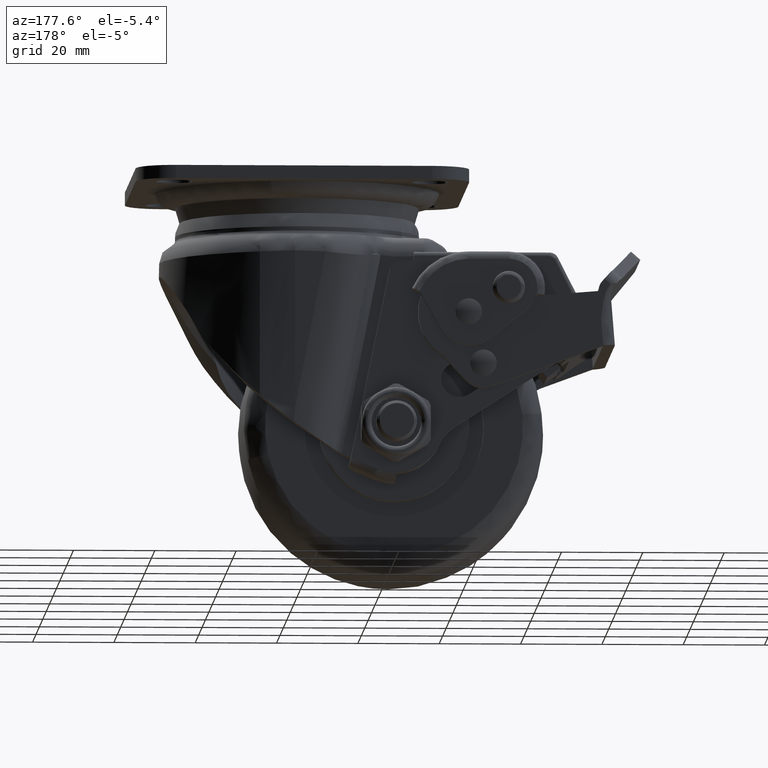
[diagram: clean part render]
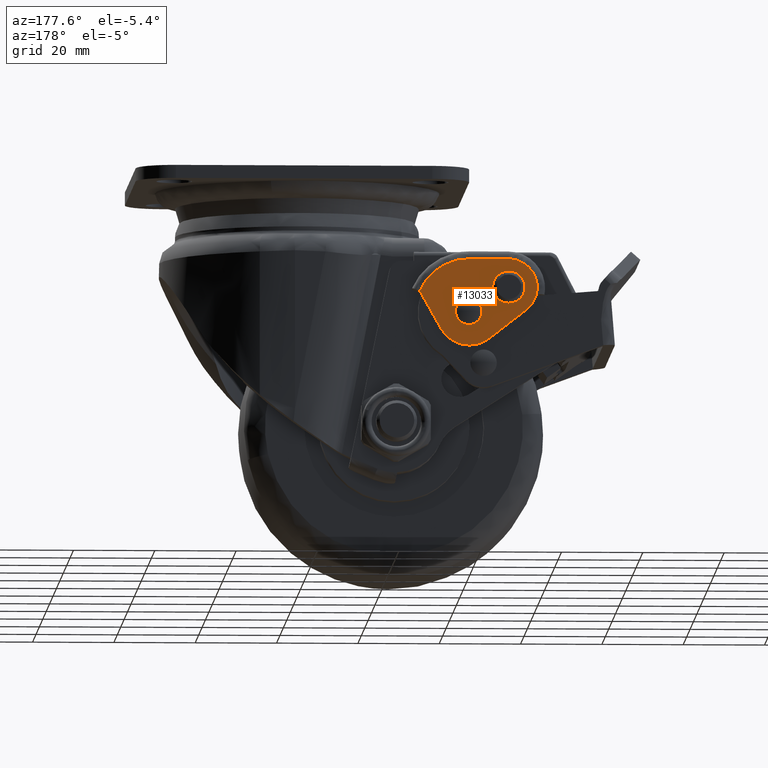
[diagram: same view with one face highlighted and labeled with its STEP entity id]
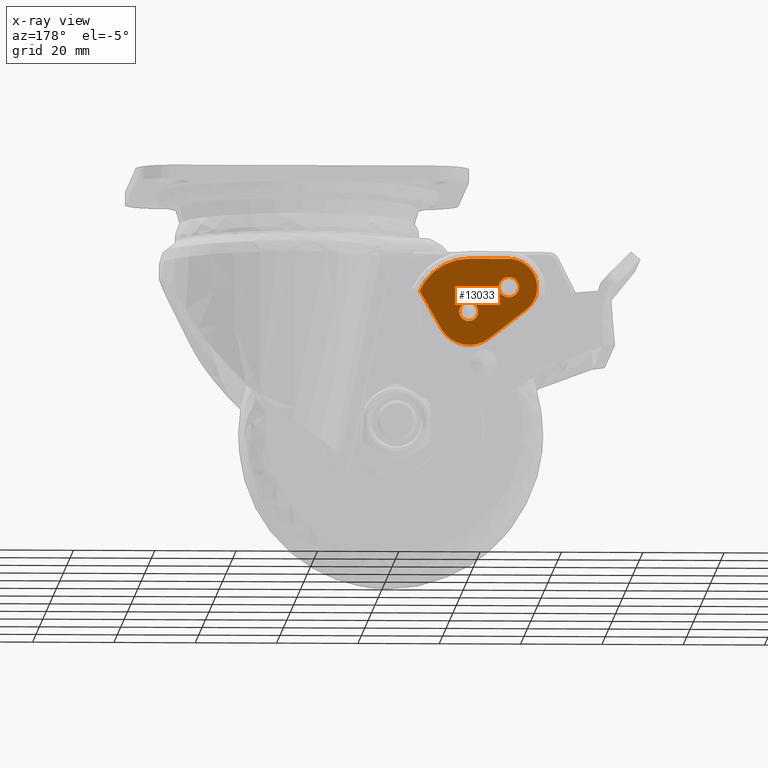
[diagram: x-ray of the same camera — body ghosted, the highlighted face saturated]
A machine part, auxiliary view. The second image highlights one B-rep face of the part: STEP entity #13033.
The next image is the same camera in x-ray: the body ghosted, the highlighted face saturated — about 0% of this face is hidden behind the body in this view.
In plain terms, the highlighted face is a freeform B-spline surface patch.
Its self-contained STEP definition (entity closure, byte-faithful):
#1064=CARTESIAN_POINT('',(-42.574883191452713,34.100006382280199,-33.766673341095078));
#1065=VERTEX_POINT('',#1064);
#1071=CARTESIAN_POINT('',(-40.792335500078302,34.100006000000100,-32.939647000000313));
#1072=VERTEX_POINT('',#1071);
#1073=CARTESIAN_POINT('',(-42.574883191452713,34.100006382280199,-33.766673341095078));
#1074=CARTESIAN_POINT('',(-42.370466636384663,34.100006338441588,-33.524433009491602));
#1075=CARTESIAN_POINT('',(-41.827068899284527,34.100006221906149,-33.098885324676452));
#1076=CARTESIAN_POINT('',(-41.151583893008407,34.100006077043503,-32.939105473525053));
#1077=CARTESIAN_POINT('',(-40.792335500078302,34.100006000000100,-32.939647000000313));
#1078=B_SPLINE_CURVE_WITH_KNOTS('',3,(#1073,#1074,#1075,#1076,#1077),.UNSPECIFIED.,.F.,.U.,(4,1,4),(0.000000129872979,0.950797897991945,2.028309819867152),.UNSPECIFIED.);
#1079=EDGE_CURVE('',#1065,#1072,#1078,.T.);
#1081=CARTESIAN_POINT('',(-38.457801500081047,34.100006000000100,-35.274184382237692));
#1082=VERTEX_POINT('',#1081);
#1083=CARTESIAN_POINT('',(-40.792335500078302,34.100006000000100,-32.939647000000313));
#1084=CARTESIAN_POINT('',(-40.505808576500037,34.100006000000157,-32.939398136130137));
#1085=CARTESIAN_POINT('',(-40.028516314933320,34.100006000000029,-33.028701182422033));
#1086=CARTESIAN_POINT('',(-39.383563507338494,34.100006000000128,-33.373409510353291));
#1087=CARTESIAN_POINT('',(-38.940558259260200,34.100006000000107,-33.805657259792213));
#1088=CARTESIAN_POINT('',(-38.563166472949462,34.100006000000000,-34.453229549226371));
#1089=CARTESIAN_POINT('',(-38.457382664729202,34.100006000000100,-34.949400640950763));
#1090=CARTESIAN_POINT('',(-38.457801500081047,34.100006000000100,-35.274184382237692));
#1091=B_SPLINE_CURVE_WITH_KNOTS('',3,(#1083,#1084,#1085,#1086,#1087,#1088,#1089,#1090),.UNSPECIFIED.,.F.,.U.,(4,1,1,1,1,4),(0.000000385372509,0.859494370370032,1.432497426822967,2.177356695668710,2.693075669383988,3.667171359946788),.UNSPECIFIED.);
#1092=EDGE_CURVE('',#1072,#1082,#1091,.T.);
#1094=CARTESIAN_POINT('',(-40.792335500078302,34.100006000000100,-37.608714999999698));
#1095=VERTEX_POINT('',#1094);
#1096=CARTESIAN_POINT('',(-38.457801500081047,34.100006000000100,-35.274184382237692));
#1097=CARTESIAN_POINT('',(-38.457213297915487,34.100006000000221,-35.637190204337472));
#1098=CARTESIAN_POINT('',(-38.598690525809531,34.100005999999873,-36.228683258099693));
#1099=CARTESIAN_POINT('',(-39.043629341651993,34.100006000000370,-36.860010599276883));
#1100=CARTESIAN_POINT('',(-39.455363395882380,34.100005999999823,-37.206335503180313));
#1101=CARTESIAN_POINT('',(-40.009511957553258,34.100006000000313,-37.511560946481197));
#1102=CARTESIAN_POINT('',(-40.467564815376043,34.100005999999993,-37.609096286534907));
#1103=CARTESIAN_POINT('',(-40.792335500078302,34.100006000000100,-37.608714999999698));
#1104=B_SPLINE_CURVE_WITH_KNOTS('',3,(#1096,#1097,#1098,#1099,#1100,#1101,#1102,#1103),.UNSPECIFIED.,.F.,.U.,(4,1,1,1,1,4),(0.000000389997788,1.088697619170617,1.776337510879760,2.291942768800888,2.693072866498494,3.667167547281464),.UNSPECIFIED.);
#1105=EDGE_CURVE('',#1082,#1095,#1104,.T.);
#1107=CARTESIAN_POINT('',(-42.399321673234333,34.100005612870191,-36.967591090904243));
#1108=VERTEX_POINT('',#1107);
#1109=CARTESIAN_POINT('',(-40.792335500078302,34.100006000000100,-37.608714999999698));
#1110=CARTESIAN_POINT('',(-41.032346200386883,34.100005942180523,-37.608797141734463));
#1111=CARTESIAN_POINT('',(-41.623159432611097,34.100005799850919,-37.516882710909293));
#1112=CARTESIAN_POINT('',(-42.145173502720702,34.100005674095677,-37.209557630376942));
#1113=CARTESIAN_POINT('',(-42.399321673234333,34.100005612870191,-36.967591090904243));
#1114=B_SPLINE_CURVE_WITH_KNOTS('',3,(#1109,#1110,#1111,#1112,#1113),.UNSPECIFIED.,.F.,.U.,(4,1,4),(0.000000086479995,0.720067539410083,1.772461775628986),.UNSPECIFIED.);
#1115=EDGE_CURVE('',#1095,#1108,#1114,.T.);
#1195=CARTESIAN_POINT('',(-43.126869500075550,34.100006000000100,-35.274177617762298));
#1196=VERTEX_POINT('',#1195);
#1197=CARTESIAN_POINT('',(-42.399321673234333,34.100005612870191,-36.967591090904243));
#1198=CARTESIAN_POINT('',(-42.614290838626772,34.100005659416517,-36.763984799372707));
#1199=CARTESIAN_POINT('',(-42.988190786490641,34.100005779012477,-36.240837571568029));
#1200=CARTESIAN_POINT('',(-43.127323207315797,34.100005923283732,-35.609756311650457));
#1201=CARTESIAN_POINT('',(-43.126869500075550,34.100006000000100,-35.274177617762298));
#1202=B_SPLINE_CURVE_WITH_KNOTS('',3,(#1197,#1198,#1199,#1200,#1201),.UNSPECIFIED.,.F.,.U.,(4,1,4),(0.000000120702166,0.888176205666778,1.894710239028327),.UNSPECIFIED.);
#1203=EDGE_CURVE('',#1108,#1196,#1202,.T.);
#1205=CARTESIAN_POINT('',(-43.126869500075550,34.100006000000100,-35.274177617762298));
#1206=CARTESIAN_POINT('',(-43.127431277407247,34.100006086607891,-34.932643785017412));
#1207=CARTESIAN_POINT('',(-43.004731051502780,34.100006225000612,-34.386897836386282));
#1208=CARTESIAN_POINT('',(-42.707197904877653,34.100006342621661,-33.923064942953239));
#1209=CARTESIAN_POINT('',(-42.574883191452713,34.100006382280199,-33.766673341095078));
#1210=B_SPLINE_CURVE_WITH_KNOTS('',3,(#1205,#1206,#1207,#1208,#1209),.UNSPECIFIED.,.F.,.U.,(4,1,4),(0.000000074674307,1.024271963896624,1.638860474799918),.UNSPECIFIED.);
#1211=EDGE_CURVE('',#1196,#1065,#1210,.T.);
#2385=CARTESIAN_POINT('',(-48.157726846598223,34.100005999999802,-29.223644831053640));
#2386=VERTEX_POINT('',#2385);
#2387=CARTESIAN_POINT('',(-49.392148480984353,34.100006209779821,-27.067626788226189));
#2388=VERTEX_POINT('',#2387);
#2389=CARTESIAN_POINT('',(-48.157726846598223,34.100005999999802,-29.223644831053640));
#2390=CARTESIAN_POINT('',(-48.157660409038783,34.100006021081697,-29.006975572816021));
#2391=CARTESIAN_POINT('',(-48.210885199628017,34.100006060606077,-28.600761927085809));
#2392=CARTESIAN_POINT('',(-48.449653531697557,34.100006119872212,-27.991654625511980));
#2393=CARTESIAN_POINT('',(-48.838714153699406,34.100006171380073,-27.462277603595538));
#2394=CARTESIAN_POINT('',(-49.205271952507367,34.100006199111220,-27.177275515972831));
#2395=CARTESIAN_POINT('',(-49.392148480984353,34.100006209779821,-27.067626788226189));
#2396=B_SPLINE_CURVE_WITH_KNOTS('',3,(#2389,#2390,#2391,#2392,#2393,#2394,#2395),.UNSPECIFIED.,.F.,.U.,(4,1,1,1,4),(0.000000107780270,0.650025391770587,1.218806580508256,1.950075960027090,2.600101244293065),.UNSPECIFIED.);
#2397=EDGE_CURVE('',#2386,#2388,#2396,.T.);
#2399=CARTESIAN_POINT('',(-50.657771200143699,34.100005999999802,-31.723692353547680));
#2400=VERTEX_POINT('',#2399);
#2401=CARTESIAN_POINT('',(-50.657771200143699,34.100005999999802,-31.723692353547680));
#2402=CARTESIAN_POINT('',(-50.309995505196660,34.100005999999837,-31.724112523323381));
#2403=CARTESIAN_POINT('',(-49.717214170792523,34.100005999999802,-31.597870292288231));
#2404=CARTESIAN_POINT('',(-48.948516516590303,34.100005999999823,-31.111152987045649));
#2405=CARTESIAN_POINT('',(-48.467574812598038,34.100005999999752,-30.510317154175510));
#2406=CARTESIAN_POINT('',(-48.208221658191981,34.100005999999730,-29.837214006041851));
#2407=CARTESIAN_POINT('',(-48.157683435684902,34.100005999999667,-29.428177874801861));
#2408=CARTESIAN_POINT('',(-48.157726846598223,34.100005999999802,-29.223644831053640));
#2409=B_SPLINE_CURVE_WITH_KNOTS('',3,(#2401,#2402,#2403,#2404,#2405,#2406,#2407,#2408),.UNSPECIFIED.,.F.,.U.,(4,1,1,1,1,4),(0.000000412953550,1.043156085626247,1.779517573904574,2.699907514640243,3.313551735074864,3.927160819131117),.UNSPECIFIED.);
#2410=EDGE_CURVE('',#2400,#2386,#2409,.T.);
#2412=CARTESIAN_POINT('',(-52.500998347180399,34.100006239340622,-30.912654495587500));
#2413=VERTEX_POINT('',#2412);
#2414=CARTESIAN_POINT('',(-52.500998347180399,34.100006239340622,-30.912654495587500));
#2415=CARTESIAN_POINT('',(-52.282423514204218,34.100006210958902,-31.151692115033349));
#2416=CARTESIAN_POINT('',(-51.715165653222947,34.100006137301271,-31.568538998973150));
#2417=CARTESIAN_POINT('',(-51.024897268453387,34.100006047670668,-31.724295499703668));
#2418=CARTESIAN_POINT('',(-50.657771200143699,34.100005999999802,-31.723692353547680));
#2419=B_SPLINE_CURVE_WITH_KNOTS('',3,(#2414,#2415,#2416,#2417,#2418),.UNSPECIFIED.,.F.,.U.,(4,1,4),(0.000000110185697,0.971591639169405,2.072673825543643),.UNSPECIFIED.);
#2420=EDGE_CURVE('',#2413,#2400,#2419,.T.);
#2484=CARTESIAN_POINT('',(-50.657771200143699,34.100005999999802,-26.723603646452720));
#2485=VERTEX_POINT('',#2484);
#2486=CARTESIAN_POINT('',(-49.392148480984353,34.100006209779821,-27.067626788226189));
#2487=CARTESIAN_POINT('',(-49.773398740256802,34.100006146586587,-26.842921770915659));
#2488=CARTESIAN_POINT('',(-50.215292493281261,34.100006073341760,-26.723058732734899));
#2489=CARTESIAN_POINT('',(-50.657771200143699,34.100005999999802,-26.723603646452720));
#2490=B_SPLINE_CURVE_WITH_KNOTS('',3,(#2486,#2487,#2488,#2489),.UNSPECIFIED.,.F.,.U.,(4,4),(0.000000029602861,1.327132310826986),.UNSPECIFIED.);
#2491=EDGE_CURVE('',#2388,#2485,#2490,.T.);
#2536=CARTESIAN_POINT('',(-53.157815553689169,34.100005999999809,-29.223651168946741));
#2537=VERTEX_POINT('',#2536);
#2538=CARTESIAN_POINT('',(-53.157815553689169,34.100005999999809,-29.223651168946741));
#2539=CARTESIAN_POINT('',(-53.158026988199673,34.100006041065008,-29.513444309629300));
#2540=CARTESIAN_POINT('',(-53.049059077811897,34.100006128635023,-30.131417095703199));
#2541=CARTESIAN_POINT('',(-52.723171552589953,34.100006205062542,-30.670757354116549));
#2542=CARTESIAN_POINT('',(-52.500998347180399,34.100006239340622,-30.912654495587500));
#2543=B_SPLINE_CURVE_WITH_KNOTS('',3,(#2538,#2539,#2540,#2541,#2542),.UNSPECIFIED.,.F.,.U.,(4,1,4),(0.000000082596729,0.869314641626592,1.854484125524934),.UNSPECIFIED.);
#2544=EDGE_CURVE('',#2537,#2413,#2543,.T.);
#2546=CARTESIAN_POINT('',(-50.657771200143699,34.100005999999802,-26.723603646452720));
#2547=CARTESIAN_POINT('',(-51.046553552881683,34.100005999999823,-26.722941422200769));
#2548=CARTESIAN_POINT('',(-51.638938504039231,34.100005999999738,-26.864811949584119));
#2549=CARTESIAN_POINT('',(-52.393028364890320,34.100005999999837,-27.368651643028649));
#2550=CARTESIAN_POINT('',(-52.847967069776537,34.100005999999773,-27.936981570428760));
#2551=CARTESIAN_POINT('',(-53.107314398923400,34.100005999999837,-28.610081730448961));
#2552=CARTESIAN_POINT('',(-53.157861617702643,34.100005999999802,-29.019118627463111));
#2553=CARTESIAN_POINT('',(-53.157815553689169,34.100005999999809,-29.223651168946741));
#2554=B_SPLINE_CURVE_WITH_KNOTS('',3,(#2546,#2547,#2548,#2549,#2550,#2551,#2552,#2553),.UNSPECIFIED.,.F.,.U.,(4,1,1,1,1,4),(0.000000412960878,1.165878855568575,1.779517573907996,2.699907514642234,3.313551735075889,3.927160819131014),.UNSPECIFIED.);
#2555=EDGE_CURVE('',#2485,#2537,#2554,.T.);
#8038=CARTESIAN_POINT('',(-28.762713999999900,34.100005999999851,-30.197382000000101));
#8039=VERTEX_POINT('',#8038);
#8053=CARTESIAN_POINT('',(-40.948495741852703,34.100005999999802,-22.223533999873151));
#8054=VERTEX_POINT('',#8053);
#8055=CARTESIAN_POINT('',(-40.948495741852703,34.100005999999802,-22.223533999873151));
#8056=CARTESIAN_POINT('',(-40.105716755112972,34.100005999999709,-22.223443098788309));
#8057=CARTESIAN_POINT('',(-38.380047670424368,34.100006000000029,-22.388072542467480));
#8058=CARTESIAN_POINT('',(-35.635733852812471,34.100005999999567,-23.205919691215030));
#8059=CARTESIAN_POINT('',(-33.242991037275146,34.100006000000029,-24.563308811453680));
#8060=CARTESIAN_POINT('',(-31.433732651504169,34.100005999999567,-26.164454482866621));
#8061=CARTESIAN_POINT('',(-29.954147793022891,34.100006000000242,-27.915106131907539));
#8062=CARTESIAN_POINT('',(-29.164237582874389,34.100005999999922,-29.277902068010171));
#8063=CARTESIAN_POINT('',(-28.762713999999900,34.100005999999851,-30.197382000000101));
#8064=B_SPLINE_CURVE_WITH_KNOTS('',3,(#8055,#8056,#8057,#8058,#8059,#8060,#8061,#8062,#8063),.UNSPECIFIED.,.F.,.U.,(4,1,1,1,1,1,4),(0.000000097734512,2.528335791745437,5.177104572708473,8.548208411893645,10.715364702250991,12.400956000180280,15.410880435709791),.UNSPECIFIED.);
#8065=EDGE_CURVE('',#8054,#8039,#8064,.T.);
#8109=CARTESIAN_POINT('',(-50.657853017500301,34.100005999999802,-22.223648000490101));
#8110=VERTEX_POINT('',#8109);
#8130=CARTESIAN_POINT('',(-50.657853017500301,34.100005999999802,-22.223648000490101));
#8131=CARTESIAN_POINT('',(-40.948495741852703,34.100005999999802,-22.223533999873151));
#8132=QUASI_UNIFORM_CURVE('',1,(#8130,#8131),.UNSPECIFIED.,.F.,.U.);
#8133=EDGE_CURVE('',#8110,#8054,#8132,.T.);
#8184=CARTESIAN_POINT('',(-57.267918217336792,34.100005999999851,-31.527109592999050));
#8185=VERTEX_POINT('',#8184);
#8186=CARTESIAN_POINT('',(-57.267918217336792,34.100005999999851,-31.527109592999050));
#8187=CARTESIAN_POINT('',(-57.519892115436058,34.100005999999887,-30.805363050419849));
#8188=CARTESIAN_POINT('',(-57.741557362992971,34.100005999999787,-29.521456669647279));
#8189=CARTESIAN_POINT('',(-57.567167251879383,34.100005999999823,-27.852246329733930));
#8190=CARTESIAN_POINT('',(-57.168489105049403,34.100005999999723,-26.552308594219419));
#8191=CARTESIAN_POINT('',(-56.512373877617463,34.100006000000327,-25.280248338955971));
#8192=CARTESIAN_POINT('',(-55.474940870457232,34.100005999998530,-24.047523059623330));
#8193=CARTESIAN_POINT('',(-54.169868038833393,34.100006000001422,-23.105199965662489));
#8194=CARTESIAN_POINT('',(-52.568685352326852,34.100005999998572,-22.410161750747822));
#8195=CARTESIAN_POINT('',(-51.387583115451662,34.100005999999887,-22.223275268618369));
#8196=CARTESIAN_POINT('',(-50.657853017500301,34.100005999999802,-22.223648000490101));
#8197=B_SPLINE_CURVE_WITH_KNOTS('',3,(#8186,#8187,#8188,#8189,#8190,#8191,#8192,#8193,#8194,#8195,#8196),.UNSPECIFIED.,.F.,.U.,(4,1,1,1,1,1,1,1,4),(0.000000337780582,2.293268468686174,3.856916422173955,5.003603662057948,6.358735393512464,8.130774929858781,9.798627269756388,11.153772595075640,13.342814550701020),.UNSPECIFIED.);
#8198=EDGE_CURVE('',#8185,#8110,#8197,.T.);
#8237=CARTESIAN_POINT('',(-33.979615408766151,34.100005999999851,-39.450460719084212));
#8238=VERTEX_POINT('',#8237);
#8244=CARTESIAN_POINT('',(-33.979615408766151,34.100005999999851,-39.450460719084212));
#8245=CARTESIAN_POINT('',(-28.762713999999900,34.100005999999851,-30.197382000000101));
#8246=QUASI_UNIFORM_CURVE('',1,(#8244,#8245),.UNSPECIFIED.,.F.,.U.);
#8247=EDGE_CURVE('',#8238,#8039,#8246,.T.);
#8359=CARTESIAN_POINT('',(-54.960240880454698,34.100005999999851,-34.745305529270787));
#8360=VERTEX_POINT('',#8359);
#8361=CARTESIAN_POINT('',(-57.267918217336792,34.100005999999851,-31.527109592999050));
#8362=CARTESIAN_POINT('',(-57.034270319132702,34.100005999999951,-32.198625659147517));
#8363=CARTESIAN_POINT('',(-56.399316433956692,34.100005999999730,-33.394325301025958));
#8364=CARTESIAN_POINT('',(-55.455225150425200,34.100005999999922,-34.359876716324052));
#8365=CARTESIAN_POINT('',(-54.960240880454698,34.100005999999851,-34.745305529270787));
#8366=B_SPLINE_CURVE_WITH_KNOTS('',3,(#8361,#8362,#8363,#8364,#8365),.UNSPECIFIED.,.F.,.U.,(4,1,4),(0.000000025718386,2.132921124579681,4.014929699821024),.UNSPECIFIED.);
#8367=EDGE_CURVE('',#8185,#8360,#8366,.T.);
#8390=CARTESIAN_POINT('',(-45.865450749091004,34.100005999999851,-41.831954319166513));
#8391=VERTEX_POINT('',#8390);
#8392=CARTESIAN_POINT('',(-54.960240880454698,34.100005999999851,-34.745305529270787));
#8393=CARTESIAN_POINT('',(-45.865450749091004,34.100005999999851,-41.831954319166513));
#8394=QUASI_UNIFORM_CURVE('',1,(#8392,#8393),.UNSPECIFIED.,.F.,.U.);
#8395=EDGE_CURVE('',#8360,#8391,#8394,.T.);
#8434=CARTESIAN_POINT('',(-45.865450749091004,34.100005999999851,-41.831954319166513));
#8435=CARTESIAN_POINT('',(-45.385188712401153,34.100005999999887,-42.206310159185492));
#8436=CARTESIAN_POINT('',(-44.461736414909751,34.100005999999809,-42.769428588609252));
#8437=CARTESIAN_POINT('',(-42.905896254993230,34.100005999999929,-43.330793625244603));
#8438=CARTESIAN_POINT('',(-41.338853507643108,34.100005999999723,-43.570072055761337));
#8439=CARTESIAN_POINT('',(-39.577575610660517,34.100006000000008,-43.470117576563887));
#8440=CARTESIAN_POINT('',(-38.016414709084273,34.100005999999873,-43.023986480533132));
#8441=CARTESIAN_POINT('',(-36.454311494849129,34.100006000000263,-42.211125956159051));
#8442=CARTESIAN_POINT('',(-35.087405858804871,34.100005999999368,-41.087486307453482));
#8443=CARTESIAN_POINT('',(-34.296162942232058,34.100006000000050,-40.012155139139850));
#8444=CARTESIAN_POINT('',(-33.979615408766151,34.100005999999851,-39.450460719084212));
#8445=B_SPLINE_CURVE_WITH_KNOTS('',3,(#8434,#8435,#8436,#8437,#8438,#8439,#8440,#8441,#8442,#8443,#8444),.UNSPECIFIED.,.F.,.U.,(4,1,1,1,1,1,1,1,4),(0.000000272963236,1.826779227007600,3.223797798899900,4.943187237832881,6.555079641955722,8.489308066346336,9.778849707165790,11.820623122830240,13.754877079551891),.UNSPECIFIED.);
#8446=EDGE_CURVE('',#8391,#8238,#8445,.T.);
#13003=CARTESIAN_POINT('',(-59.099974631410653,34.100005999999802,-21.159833301519850));
#13004=CARTESIAN_POINT('',(-27.319459889368432,34.100005999999787,-21.159833301519850));
#13005=CARTESIAN_POINT('',(-59.099974631410653,34.100005999999802,-44.582536987077283));
#13006=CARTESIAN_POINT('',(-27.319459889368432,34.100005999999787,-44.582536987077283));
#13007=B_SPLINE_SURFACE_WITH_KNOTS('',1,1,((#13003,#13005),(#13004,#13006)),.UNSPECIFIED.,.F.,.F.,.U.,(2,2),(2,2),(0.0,31.780514742042222),(0.0,23.422703685557419),.UNSPECIFIED.);
#13008=ORIENTED_EDGE('',*,*,#8133,.T.);
#13009=ORIENTED_EDGE('',*,*,#8065,.T.);
#13010=ORIENTED_EDGE('',*,*,#8247,.F.);
#13011=ORIENTED_EDGE('',*,*,#8446,.F.);
#13012=ORIENTED_EDGE('',*,*,#8395,.F.);
#13013=ORIENTED_EDGE('',*,*,#8367,.F.);
#13014=ORIENTED_EDGE('',*,*,#8198,.T.);
#13015=EDGE_LOOP('',(#13008,#13009,#13010,#13011,#13012,#13013,#13014));
#13016=FACE_OUTER_BOUND('',#13015,.T.);
#13017=ORIENTED_EDGE('',*,*,#2555,.T.);
#13018=ORIENTED_EDGE('',*,*,#2544,.T.);
#13019=ORIENTED_EDGE('',*,*,#2420,.T.);
#13020=ORIENTED_EDGE('',*,*,#2410,.T.);
#13021=ORIENTED_EDGE('',*,*,#2397,.T.);
#13022=ORIENTED_EDGE('',*,*,#2491,.T.);
#13023=EDGE_LOOP('',(#13017,#13018,#13019,#13020,#13021,#13022));
#13024=FACE_BOUND('',#13023,.T.);
#13025=ORIENTED_EDGE('',*,*,#1092,.F.);
#13026=ORIENTED_EDGE('',*,*,#1079,.F.);
#13027=ORIENTED_EDGE('',*,*,#1211,.F.);
#13028=ORIENTED_EDGE('',*,*,#1203,.F.);
#13029=ORIENTED_EDGE('',*,*,#1115,.F.);
#13030=ORIENTED_EDGE('',*,*,#1105,.F.);
#13031=EDGE_LOOP('',(#13025,#13026,#13027,#13028,#13029,#13030));
#13032=FACE_BOUND('',#13031,.T.);
#13033=ADVANCED_FACE('',(#13016,#13024,#13032),#13007,.T.);